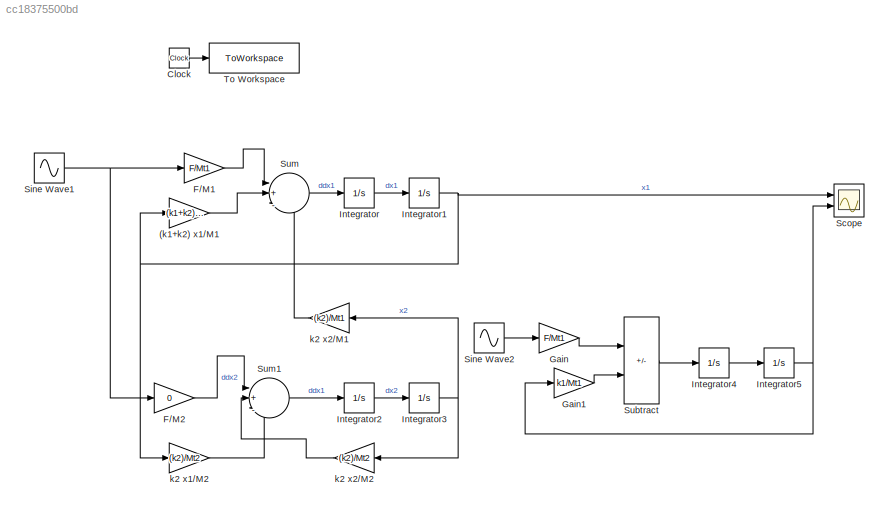
MODEL slx_cc18375500bd
KIND model
CONFIG AbsTol = auto
CONFIG EnableMultiTasking = off
CONFIG FixedStep = 0.001
CONFIG MaxStep = auto
CONFIG MinStep = auto
CONFIG RelTol = 1e-3
CONFIG SampleTimeConstraint = Unconstrained
CONFIG Solver = ode4
CONFIG SolverName = ode4
CONFIG StartTime = 0.0
CONFIG StopTime = 10
BLOCK [Gain] (k1+k2) x1//M1
  Gain = (k1+k2)/Mt1
BLOCK [Clock] Clock
BLOCK [Gain] F//M1
  Gain = F/Mt1
BLOCK [Gain] F//M2
  Gain = 0
BLOCK [Gain] Gain
  Gain = F/Mt1
BLOCK [Gain] Gain1
  Gain = k1/Mt1
BLOCK [Integrator] Integrator
  Ports = [1, 1]
BLOCK [Integrator] Integrator1
  Ports = [1, 1]
BLOCK [Integrator] Integrator2
  Ports = [1, 1]
BLOCK [Integrator] Integrator3
  Ports = [1, 1]
BLOCK [Integrator] Integrator4
  Ports = [1, 1]
BLOCK [Integrator] Integrator5
  Ports = [1, 1]
BLOCK [Scope] Scope
  Floating = off
  NumInputPorts = 2
  Ports = [2]
  ScopeSpecificationString = Simulink.scopes.TimeScopeBlockCfg('CurrentConfiguration', extmgr.ConfigurationSet(extmgr.Configuration('Core','General UI',true),extmgr.Configuration('Core','Source UI',true),extmgr.Configuration('Sources','WiredSimulink',true,'DataLogging',true,'DataLoggingSaveFormat','Structure','DataLoggingVariableName','G1'),extmgr.Configuration('Visuals','Time Domain',true,'SerializedDisplays',{struct('MinYLi...<+1482ch>
BLOCK [Sin] Sine Wave1
  Amplitude = F
  Frequency = w
  Ports = [0, 1]
  SampleTime = 0
BLOCK [Sin] Sine Wave2
  Amplitude = F
  Frequency = w
  Ports = [0, 1]
  SampleTime = 0
BLOCK [Sum] Subtract
  IconShape = rectangular
  Inputs = +-
  Ports = [2, 1]
BLOCK [Sum] Sum
  Inputs = |+|-|+
  Ports = [3, 1]
BLOCK [Sum] Sum1
  Inputs = |+|-|+
  Ports = [3, 1]
BLOCK [ToWorkspace] To Workspace
  FixptAsFi = on
  MaxDataPoints = inf
  Ports = [1]
  SampleTime = -1
  SaveFormat = Structure
  VariableName = Sim
BLOCK [Gain] k2 x1//M2
  Gain = (k2)/Mt2
BLOCK [Gain] k2 x2//M1
  Gain = (k2)/Mt1
  NameLocation = top
BLOCK [Gain] k2 x2//M2
  Gain = (k2)/Mt2
  NameLocation = top
LINE (k1+k2) x1//M1:1 -> Sum:2
LINE Clock:1 -> To Workspace:1
LINE F//M1:1 -> Sum:1
LINE F//M2:1 -> Sum1:1
LINE Gain1:1 -> Subtract:2
LINE Gain:1 -> Subtract:1
NET Integrator1:1 -> (k1+k2) x1//M1:1, Scope:1, k2 x1//M2:1
LINE Integrator2:1 -> Integrator3:1
NET Integrator3:1 -> k2 x2//M1:1, k2 x2//M2:1
LINE Integrator4:1 -> Integrator5:1
NET Integrator5:1 -> Gain1:1, Scope:2
LINE Integrator:1 -> Integrator1:1
NET Sine Wave1:1 -> F//M1:1, F//M2:1
LINE Sine Wave2:1 -> Gain:1
LINE Subtract:1 -> Integrator4:1
LINE Sum1:1 -> Integrator2:1
LINE Sum:1 -> Integrator:1
LINE k2 x1//M2:1 -> Sum1:3
LINE k2 x2//M1:1 -> Sum:3
LINE k2 x2//M2:1 -> Sum1:2
note: NET lines group one-source signal fan-out (src -> all destinations, sorted); 1:1 wires keep LINE
